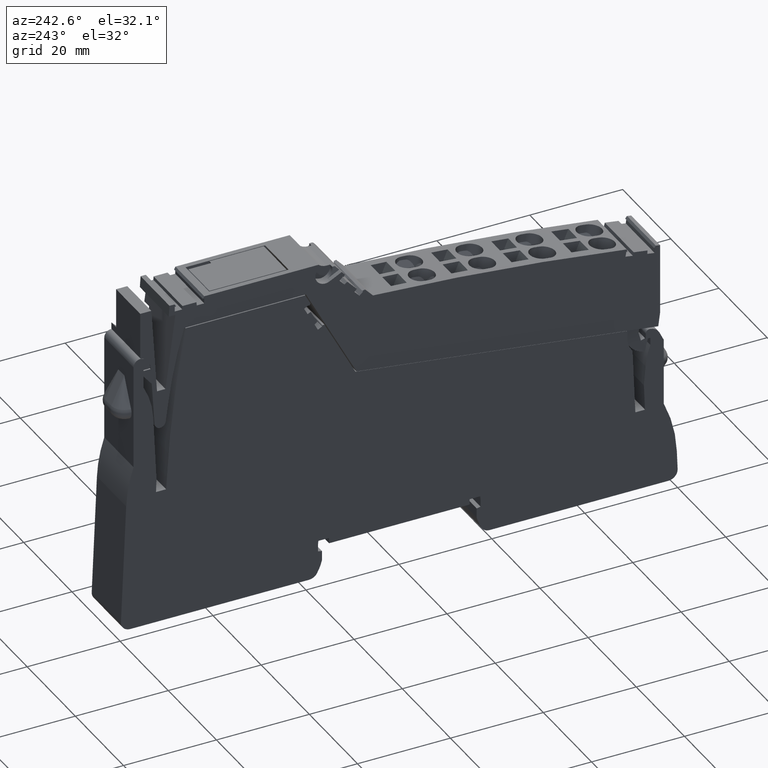
[diagram: clean part render]
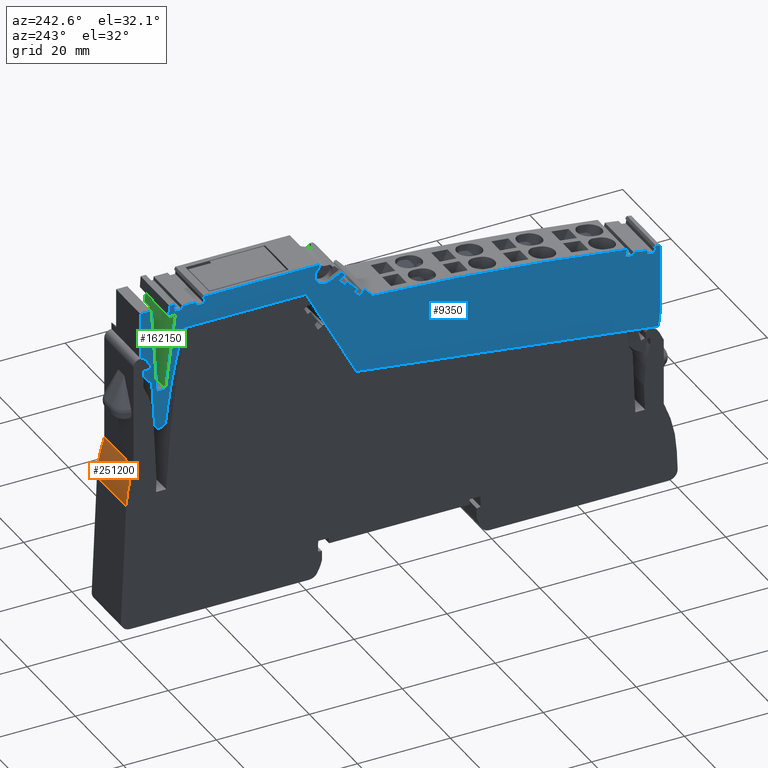
[diagram: same view with three faces highlighted in distinct colors, each labeled with its STEP entity id]
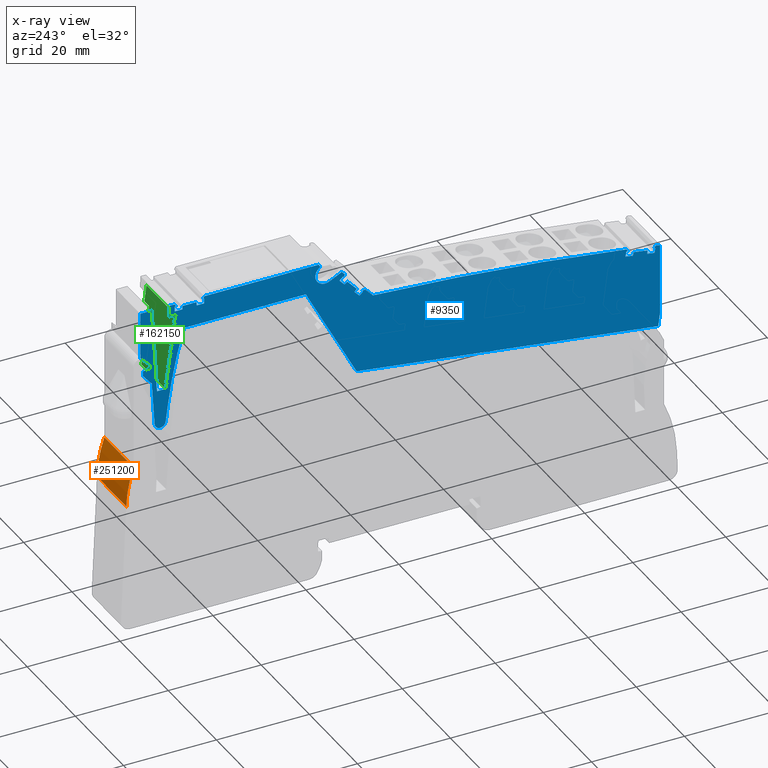
[diagram: x-ray of the same camera — body ghosted, the three highlighted faces saturated]
A machine part, auxiliary view with three faces highlighted in distinct colors.
The next image is the same camera in x-ray (body ghosted, the three faces saturated) — at least one of them is partly hidden behind the body in this view.
Their STEP definitions:

[orange] entity #251200 — the highlighted cylindrical surface (partial cylindrical patch) has radius 30 mm, axis along (1, 0, 0).
#176060=CARTESIAN_POINT('',(293.728620208859,-26.6633289582232,36.45));
#176070=VERTEX_POINT('',#176060);
#176100=CARTESIAN_POINT('',(265.338905386229,-36.3599310584282,36.45));
#176110=DIRECTION('',(0.,1.19110369467609E-44,1.));
#176120=DIRECTION('',(1.,0.,0.));
#176130=AXIS2_PLACEMENT_3D('',#176100,#176110,#176120);
#176140=CIRCLE('',#176130,29.9999999999995);
#176150=CARTESIAN_POINT('',(295.310352033684,-35.0513494374681,36.45));
#176160=VERTEX_POINT('',#176150);
#176170=EDGE_CURVE('',#176160,#176070,#176140,.T.);
#179710=CARTESIAN_POINT('',(295.310352033684,-35.0513494374681,24.3));
#179720=VERTEX_POINT('',#179710);
#179750=CARTESIAN_POINT('',(265.338905386229,-36.3599310584282,24.3));
#179760=DIRECTION('',(0.,1.19110369467609E-44,1.));
#179770=DIRECTION('',(1.,0.,0.));
#179780=AXIS2_PLACEMENT_3D('',#179750,#179760,#179770);
#179790=CIRCLE('',#179780,29.9999999999995);
#179800=CARTESIAN_POINT('',(293.728620208859,-26.6633289582232,24.3));
#179810=VERTEX_POINT('',#179800);
#179820=EDGE_CURVE('',#179720,#179810,#179790,.T.);
#185440=CARTESIAN_POINT('',(295.310352033684,-35.0513494374681,24.3));
#185450=DIRECTION('',(0.,1.19110369467609E-44,1.));
#185460=VECTOR('',#185450,1.);
#185470=LINE('',#185440,#185460);
#185480=EDGE_CURVE('',#179720,#176160,#185470,.T.);
#251040=CARTESIAN_POINT('',(265.338905386229,-36.3599310584282,24.3));
#251050=DIRECTION('',(0.,1.19110369467609E-44,1.));
#251060=DIRECTION('',(1.,0.,0.));
#251070=AXIS2_PLACEMENT_3D('',#251040,#251050,#251060);
#251080=CYLINDRICAL_SURFACE('',#251070,29.9999999999995);
#251090=CARTESIAN_POINT('',(293.728620208859,-26.6633289582232,24.3));
#251100=DIRECTION('',(0.,1.19110369467609E-44,1.));
#251110=VECTOR('',#251100,1.);
#251120=LINE('',#251090,#251110);
#251130=EDGE_CURVE('',#179810,#176070,#251120,.T.);
#251140=ORIENTED_EDGE('',*,*,#251130,.T.);
#251150=ORIENTED_EDGE('',*,*,#179820,.T.);
#251160=ORIENTED_EDGE('',*,*,#185480,.F.);
#251170=ORIENTED_EDGE('',*,*,#176170,.F.);
#251180=EDGE_LOOP('',(#251170,#251160,#251150,#251140));
#251190=FACE_OUTER_BOUND('',#251180,.T.);
#251200=ADVANCED_FACE('',(#251190),#251080,.T.);

[blue] entity #9350 — the highlighted planar face has unit normal (1, 0, 0).
#4190=CARTESIAN_POINT('',(82.6815349965882,79.1094320933787,-47.425));
#4200=DIRECTION('',(0.,-0.,1.));
#4210=DIRECTION('',(0.99144486137381,0.130526192220052,0.));
#4220=AXIS2_PLACEMENT_3D('',#4190,#4200,#4210);
#4230=PLANE('',#4220);
#4240=CARTESIAN_POINT('',(5.79123762688281,-2.8421709430404E-14,-47.425)
);
#4250=DIRECTION('',(-0.681998360062363,-0.731353701619297,0.));
#4260=VECTOR('',#4250,1.);
#4270=LINE('',#4240,#4260);
#4280=CARTESIAN_POINT('',(81.7124060542132,81.4154854500132,-47.425));
#4290=VERTEX_POINT('',#4280);
#4300=CARTESIAN_POINT('',(81.0478254756385,80.7028100322594,-47.425));
#4310=VERTEX_POINT('',#4300);
#4320=EDGE_CURVE('',#4290,#4310,#4270,.T.);
#4330=ORIENTED_EDGE('',*,*,#4320,.F.);
#4340=CARTESIAN_POINT('',(84.4997434735127,69.4120950101041,-47.425));
#4350=DIRECTION('',(-0.29237170472236,0.956304755963151,
5.82816236513809E-18));
#4360=VECTOR('',#4350,1.);
#4370=LINE('',#4340,#4360);
#4380=CARTESIAN_POINT('',(81.2267544110084,80.1175598554815,-47.425));
#4390=VERTEX_POINT('',#4380);
#4400=EDGE_CURVE('',#4390,#4310,#4370,.T.);
#4410=ORIENTED_EDGE('',*,*,#4400,.T.);
#4420=CARTESIAN_POINT('',(72.2846363775451,70.5283122750928,-47.425));
#4430=DIRECTION('',(-0.681998360064199,-0.731353701617584,
-2.53969612853764E-19));
#4440=VECTOR('',#4430,1.);
#4450=LINE('',#4420,#4440);
#4460=CARTESIAN_POINT('',(81.4124677620555,80.3167130421773,-47.425));
#4470=VERTEX_POINT('',#4460);
#4480=EDGE_CURVE('',#4470,#4390,#4450,.T.);
#4490=ORIENTED_EDGE('',*,*,#4480,.T.);
#4500=CARTESIAN_POINT('',(92.0414943958454,70.4049853552113,-47.425));
#4510=DIRECTION('',(-0.731353701619242,0.681998360062422,
-6.29825467579363E-18));
#4520=VECTOR('',#4510,1.);
#4530=LINE('',#4500,#4520);
#4540=CARTESIAN_POINT('',(82.195016222788,79.5869747969106,-47.425));
#4550=VERTEX_POINT('',#4540);
#4560=EDGE_CURVE('',#4550,#4470,#4530,.T.);
#4570=ORIENTED_EDGE('',*,*,#4560,.T.);
#4580=CARTESIAN_POINT('',(72.4656350505869,69.1534908599375,-47.425));
#4590=DIRECTION('',(0.681998360062451,0.731353701619215,
2.5396961263959E-19));
#4600=VECTOR('',#4590,1.);
#4610=LINE('',#4580,#4600);
#4620=CARTESIAN_POINT('',(81.1059442929708,78.4190881364081,-47.425));
#4630=VERTEX_POINT('',#4620);
#4640=EDGE_CURVE('',#4630,#4550,#4610,.T.);
#4650=ORIENTED_EDGE('',*,*,#4640,.T.);
#4660=CARTESIAN_POINT('',(91.4612958937313,70.3286007733115,-47.425));
#4670=DIRECTION('',(0.788010753606755,-0.615661475325616,
4.09923168310491E-17));
#4680=VECTOR('',#4670,1.);
#4690=LINE('',#4660,#4680);
#4700=CARTESIAN_POINT('',(80.5126786729696,78.8825980380156,-47.425));
#4710=VERTEX_POINT('',#4700);
#4720=EDGE_CURVE('',#4710,#4630,#4690,.T.);
#4730=ORIENTED_EDGE('',*,*,#4720,.T.);
#4740=CARTESIAN_POINT('',(72.338766821823,70.1171507303451,-47.425));
#4750=DIRECTION('',(0.681998360062455,0.731353701619211,
2.53969612640089E-19));
#4760=VECTOR('',#4750,1.);
#4770=LINE('',#4740,#4760);
#4780=CARTESIAN_POINT('',(78.4666835927826,76.6885369331584,-47.425));
#4790=VERTEX_POINT('',#4780);
#4800=EDGE_CURVE('',#4790,#4710,#4770,.T.);
#4810=ORIENTED_EDGE('',*,*,#4800,.T.);
#4820=CARTESIAN_POINT('',(84.9634529968731,69.4731435270096,-47.425));
#4830=DIRECTION('',(-0.669130606358558,0.743144825477665,
1.32187545408513E-18));
#4840=VECTOR('',#4830,1.);
#4850=LINE('',#4820,#4840);
#4860=CARTESIAN_POINT('',(78.9704485252099,76.1290492946714,-47.425));
#4870=VERTEX_POINT('',#4860);
#4880=EDGE_CURVE('',#4870,#4790,#4850,.T.);
#4890=ORIENTED_EDGE('',*,*,#4880,.T.);
#4900=CARTESIAN_POINT('',(72.4656350505866,69.15349085994,-47.425));
#4910=DIRECTION('',(0.681998360062575,0.7313537016191,
2.53969612654784E-19));
#4920=VECTOR('',#4910,1.);
#4930=LINE('',#4900,#4920);
#4940=CARTESIAN_POINT('',(77.8813765953927,74.9611626341693,-47.425));
#4950=VERTEX_POINT('',#4940);
#4960=EDGE_CURVE('',#4950,#4870,#4930,.T.);
#4970=ORIENTED_EDGE('',*,*,#4960,.T.);
#4980=CARTESIAN_POINT('',(83.9146294887447,69.3350632926361,-47.425));
#4990=DIRECTION('',(0.731353701619242,-0.681998360062422,
6.29825467579363E-18));
#5000=VECTOR('',#4990,1.);
#5010=LINE('',#4980,#5000);
#5020=CARTESIAN_POINT('',(77.0988281346601,75.6909008794362,-47.425));
#5030=VERTEX_POINT('',#5020);
#5040=EDGE_CURVE('',#5030,#4950,#5010,.T.);
#5050=ORIENTED_EDGE('',*,*,#5040,.T.);
#5060=CARTESIAN_POINT('',(72.2846363775469,70.5283122750789,-47.425));
#5070=DIRECTION('',(-0.681998360064581,-0.731353701617229,
-2.53969612900505E-19));
#5080=VECTOR('',#5070,1.);
#5090=LINE('',#5060,#5080);
#5100=CARTESIAN_POINT('',(77.2845414857078,75.8900540661325,-47.425));
#5110=VERTEX_POINT('',#5100);
#5120=EDGE_CURVE('',#5110,#5030,#5090,.T.);
#5130=ORIENTED_EDGE('',*,*,#5120,.T.);
#5140=CARTESIAN_POINT('',(71.3998893619735,77.248633057342,-47.425));
#5150=DIRECTION('',(0.974370064785244,-0.224951054343824,
3.6059170670998E-17));
#5160=VECTOR('',#5150,1.);
#5170=LINE('',#5140,#5160);
#5180=CARTESIAN_POINT('',(76.688235497364,76.0277221510188,-47.425));
#5190=VERTEX_POINT('',#5180);
#5200=EDGE_CURVE('',#5190,#5110,#5170,.T.);
#5210=ORIENTED_EDGE('',*,*,#5200,.T.);
#5220=CARTESIAN_POINT('',(72.1949828292245,71.2092985834693,-47.425));
#5230=DIRECTION('',(-0.681998360062363,-0.731353701619297,
-2.53969612628868E-19));
#5240=VECTOR('',#5230,1.);
#5250=LINE('',#5220,#5240);
#5260=CARTESIAN_POINT('',(74.9791020504745,74.1949009213182,-47.425));
#5270=VERTEX_POINT('',#5260);
#5280=EDGE_CURVE('',#5190,#5270,#5250,.T.);
#5290=ORIENTED_EDGE('',*,*,#5280,.F.);
#5300=CARTESIAN_POINT('',(104.084452057128,-500.06799932646,-47.425));
#5310=DIRECTION('',(-8.85927774418128E-33,0.,1.));
#5320=DIRECTION('',(0.99144486137381,0.130526192220052,0.));
#5330=AXIS2_PLACEMENT_3D('',#5300,#5310,#5320);
#5340=CIRCLE('',#5330,575.);
#5350=CARTESIAN_POINT('',(20.4055873620426,68.8105884260945,-47.425));
#5360=VERTEX_POINT('',#5350);
#5370=EDGE_CURVE('',#5270,#5360,#5340,.T.);
#5380=ORIENTED_EDGE('',*,*,#5370,.F.);
#5390=CARTESIAN_POINT('',(17.182413559422,60.5496003959994,-47.425));
#5400=DIRECTION('',(0.363481180558057,0.931601541100122,
-1.0997552478088E-17));
#5410=VECTOR('',#5400,1.);
#5420=LINE('',#5390,#5410);
#5430=CARTESIAN_POINT('',(20.186856520418,68.2499817150929,-47.425));
#5440=VERTEX_POINT('',#5430);
#5450=EDGE_CURVE('',#5440,#5360,#5420,.T.);
#5460=ORIENTED_EDGE('',*,*,#5450,.T.);
#5470=CARTESIAN_POINT('',(71.5515172321112,76.0969050391398,-47.425));
#5480=DIRECTION('',(-0.988531191077486,-0.151016834382553,
3.70508301048238E-19));
#5490=VECTOR('',#5480,1.);
#5500=LINE('',#5470,#5490);
#5510=CARTESIAN_POINT('',(20.4560410974773,68.2911047500148,-47.425));
#5520=VERTEX_POINT('',#5510);
#5530=EDGE_CURVE('',#5520,#5440,#5500,.T.);
#5540=ORIENTED_EDGE('',*,*,#5530,.T.);
#5550=CARTESIAN_POINT('',(21.5508426617955,61.1247149978603,-47.425));
#5560=DIRECTION('',(-0.15101683438897,0.988531191076505,
2.32245661692122E-18));
#5570=VECTOR('',#5560,1.);
#5580=LINE('',#5550,#5570);
#5590=CARTESIAN_POINT('',(20.6176291102735,67.2333763755631,-47.425));
#5600=VERTEX_POINT('',#5590);
#5610=EDGE_CURVE('',#5600,#5520,#5580,.T.);
#5620=ORIENTED_EDGE('',*,*,#5610,.T.);
#5630=CARTESIAN_POINT('',(71.6912101768906,75.0358317793135,-47.425));
#5640=DIRECTION('',(0.9885311910765,0.151016834389004,
-3.70508301168919E-19));
#5650=VECTOR('',#5640,1.);
#5660=LINE('',#5630,#5650);
#5670=CARTESIAN_POINT('',(19.0390599596794,66.9922200841493,-47.425));
#5680=VERTEX_POINT('',#5670);
#5690=EDGE_CURVE('',#5680,#5600,#5660,.T.);
#5700=ORIENTED_EDGE('',*,*,#5690,.T.);
#5710=CARTESIAN_POINT('',(20.5015098805976,60.9865677164153,-47.425));
#5720=DIRECTION('',(0.236598339928087,-0.971607547080236,
8.15825325755319E-18));
#5730=VECTOR('',#5720,1.);
#5740=LINE('',#5710,#5730);
#5750=CARTESIAN_POINT('',(18.8609333793172,67.7237092816986,-47.425));
#5760=VERTEX_POINT('',#5750);
#5770=EDGE_CURVE('',#5760,#5680,#5740,.T.);
#5780=ORIENTED_EDGE('',*,*,#5770,.T.);
#5790=CARTESIAN_POINT('',(71.5932945613605,75.7795747186763,-47.425));
#5800=DIRECTION('',(0.988531191076507,0.151016834388962,
-3.70508301168148E-19));
#5810=VECTOR('',#5800,1.);
#5820=LINE('',#5790,#5810);
#5830=CARTESIAN_POINT('',(15.8953398060877,67.2706587785318,-47.425));
#5840=VERTEX_POINT('',#5830);
#5850=EDGE_CURVE('',#5840,#5760,#5820,.T.);
#5860=ORIENTED_EDGE('',*,*,#5850,.T.);
#5870=CARTESIAN_POINT('',(16.3354880816018,60.438100541574,-47.425));
#5880=DIRECTION('',(-0.0642859995531953,0.997931515817316,
-9.33869096267743E-19));
#5890=VECTOR('',#5880,1.);
#5900=LINE('',#5870,#5890);
#5910=CARTESIAN_POINT('',(15.9437384773084,66.5193511894665,-47.425));
#5920=VERTEX_POINT('',#5910);
#5930=EDGE_CURVE('',#5920,#5840,#5900,.T.);
#5940=ORIENTED_EDGE('',*,*,#5930,.T.);
#5950=CARTESIAN_POINT('',(71.6912101768911,75.0358317793091,-47.425));
#5960=DIRECTION('',(0.988531191076512,0.151016834388925,
-3.70508301167481E-19));
#5970=VECTOR('',#5960,1.);
#5980=LINE('',#5950,#5970);
#5990=CARTESIAN_POINT('',(14.3651693267146,66.2781948980529,-47.425));
#6000=VERTEX_POINT('',#5990);
#6010=EDGE_CURVE('',#6000,#5920,#5980,.T.);
#6020=ORIENTED_EDGE('',*,*,#6010,.T.);
#6030=CARTESIAN_POINT('',(15.2786105398164,60.2989599735539,-47.425));
#6040=DIRECTION('',(0.151016834388983,-0.988531191076503,
-2.32245661691962E-18));
#6050=VECTOR('',#6040,1.);
#6060=LINE('',#6030,#6050);
#6070=CARTESIAN_POINT('',(14.2035813139184,67.335923272505,-47.425));
#6080=VERTEX_POINT('',#6070);
#6090=EDGE_CURVE('',#6080,#6000,#6060,.T.);
#6100=ORIENTED_EDGE('',*,*,#6090,.T.);
#6110=CARTESIAN_POINT('',(71.551517232091,76.0969050392932,-47.425));
#6120=DIRECTION('',(-0.988531191076977,-0.151016834385886,
3.70508301110601E-19));
#6130=VECTOR('',#6120,1.);
#6140=LINE('',#6110,#6130);
#6150=CARTESIAN_POINT('',(14.472765890979,67.3770463074278,-47.425));
#6160=VERTEX_POINT('',#6150);
#6170=EDGE_CURVE('',#6160,#6080,#6140,.T.);
#6180=ORIENTED_EDGE('',*,*,#6170,.T.);
#6190=CARTESIAN_POINT('',(19.676851164994,60.8779993368489,-47.425));
#6200=DIRECTION('',(0.625050010517978,-0.780584706711242,
2.1035385032723E-17));
#6210=VECTOR('',#6200,1.);
#6220=LINE('',#6190,#6210);
#6230=CARTESIAN_POINT('',(14.0966316585303,67.8467761283693,-47.425));
#6240=VERTEX_POINT('',#6230);
#6250=EDGE_CURVE('',#6240,#6160,#6220,.T.);
#6260=ORIENTED_EDGE('',*,*,#6250,.T.);
#6270=CARTESIAN_POINT('',(104.084452057128,-500.06799932646,-47.425));
#6280=DIRECTION('',(-8.85927774418128E-33,0.,1.));
#6290=DIRECTION('',(0.99144486137381,0.130526192220052,0.));
#6300=AXIS2_PLACEMENT_3D('',#6270,#6280,#6290);
#6310=CIRCLE('',#6300,575.);
#6320=CARTESIAN_POINT('',(13.1829347668366,67.701244428714,-47.425));
#6330=VERTEX_POINT('',#6320);
#6340=EDGE_CURVE('',#6240,#6330,#6310,.T.);
#6350=ORIENTED_EDGE('',*,*,#6340,.F.);
#6360=CARTESIAN_POINT('',(13.1829347668366,60.0230590239077,-47.425));
#6370=DIRECTION('',(8.32667268468867E-17,-1.,-1.38777878078145E-17));
#6380=VECTOR('',#6370,1.);
#6390=LINE('',#6360,#6380);
#6400=CARTESIAN_POINT('',(13.1829347668366,52.4942181245001,-47.425));
#6410=VERTEX_POINT('',#6400);
#6420=EDGE_CURVE('',#6330,#6410,#6390,.T.);
#6430=ORIENTED_EDGE('',*,*,#6420,.F.);
#6440=CARTESIAN_POINT('',(12.2086310606799,59.8947895075835,-47.425));
#6450=DIRECTION('',(0.130526192220052,-0.99144486137381,
-3.08148791101958E-32));
#6460=VECTOR('',#6450,1.);
#6470=LINE('',#6440,#6460);
#6480=CARTESIAN_POINT('',(13.5745133434982,49.5198835403683,-47.425));
#6490=VERTEX_POINT('',#6480);
#6500=EDGE_CURVE('',#6410,#6490,#6470,.T.);
#6510=ORIENTED_EDGE('',*,*,#6500,.F.);
#6520=CARTESIAN_POINT('',(74.0030776442306,57.4754549561902,-47.425));
#6530=DIRECTION('',(0.991444861373789,0.130526192220212,
1.98588366815474E-32));
#6540=VECTOR('',#6530,1.);
#6550=LINE('',#6520,#6540);
#6560=CARTESIAN_POINT('',(78.5141517634814,58.0693491307923,-47.425));
#6570=VERTEX_POINT('',#6560);
#6580=EDGE_CURVE('',#6490,#6570,#6550,.T.);
#6590=ORIENTED_EDGE('',*,*,#6580,.F.);
#6600=CARTESIAN_POINT('',(84.5486179871549,69.4185294618935,-47.425));
#6610=DIRECTION('',(0.469471562785891,0.882947592858927,
1.98252351633153E-18));
#6620=VECTOR('',#6610,1.);
#6630=LINE('',#6600,#6620);
#6640=CARTESIAN_POINT('',(89.4233780495347,78.5866197234246,-47.425));
#6650=VERTEX_POINT('',#6640);
#6660=EDGE_CURVE('',#6570,#6650,#6630,.T.);
#6670=ORIENTED_EDGE('',*,*,#6660,.F.);
#6680=CARTESIAN_POINT('',(71.2237400756451,78.5866197234246,-47.425));
#6690=DIRECTION('',(1.,5.55111512312578E-17,1.14423563262215E-17));
#6700=VECTOR('',#6690,1.);
#6710=LINE('',#6680,#6700);
#6720=CARTESIAN_POINT('',(115.64625629166,78.5866197234246,-47.425));
#6730=VERTEX_POINT('',#6720);
#6740=EDGE_CURVE('',#6650,#6730,#6710,.T.);
#6750=ORIENTED_EDGE('',*,*,#6740,.F.);
#6760=CARTESIAN_POINT('',(15.2913513139149,48.7372805865571,-47.425));
#6770=DIRECTION('',(-8.85927774418128E-33,0.,1.));
#6780=DIRECTION('',(0.99144486137381,0.130526192220052,0.));
#6790=AXIS2_PLACEMENT_3D('',#6760,#6770,#6780);
#6800=CIRCLE('',#6790,104.7);
#6810=CARTESIAN_POINT('',(119.095628299753,62.4033729119965,-47.425));
#6820=VERTEX_POINT('',#6810);
#6830=EDGE_CURVE('',#6820,#6730,#6800,.T.);
#6840=ORIENTED_EDGE('',*,*,#6830,.T.);
#6850=CARTESIAN_POINT('',(117.599219824716,73.769723740575,-47.425));
#6860=DIRECTION('',(-0.130526192220052,0.99144486137381,0.));
#6870=VECTOR('',#6860,1.);
#6880=LINE('',#6850,#6870);
#6890=CARTESIAN_POINT('',(119.598580203269,58.5830739223591,-47.425));
#6900=VERTEX_POINT('',#6890);
#6910=EDGE_CURVE('',#6900,#6820,#6880,.T.);
#6920=ORIENTED_EDGE('',*,*,#6910,.T.);
#6930=CARTESIAN_POINT('',(120.788314036918,58.7397053530232,-47.425));
#6940=DIRECTION('',(-1.96444854327498E-32,8.0118685686509E-32,1.));
#6950=DIRECTION('',(0.99144486137381,0.130526192220052,0.));
#6960=AXIS2_PLACEMENT_3D('',#6930,#6940,#6950);
#6970=CIRCLE('',#6960,1.2);
#6980=CARTESIAN_POINT('',(121.985744744804,58.6612215979472,-47.425));
#6990=VERTEX_POINT('',#6980);
#7000=EDGE_CURVE('',#6900,#6990,#6970,.T.);
#7010=ORIENTED_EDGE('',*,*,#7000,.F.);
#7020=CARTESIAN_POINT('',(123.022808223681,74.4837526991847,-47.425));
#7030=DIRECTION('',(0.0654031292301337,0.997858923238604,
2.18873597126985E-17));
#7040=VECTOR('',#7030,1.);
#7050=LINE('',#7020,#7040);
#7060=CARTESIAN_POINT('',(122.597772882635,67.9989665315018,-47.425));
#7070=VERTEX_POINT('',#7060);
#7080=EDGE_CURVE('',#6990,#7070,#7050,.T.);
#7090=ORIENTED_EDGE('',*,*,#7080,.F.);
#7100=CARTESIAN_POINT('',(65.5398651456152,-2.8421709430404E-14,-47.425)
);
#7110=DIRECTION('',(-0.642787609686539,-0.766044443118978,0.));
#7120=VECTOR('',#7110,1.);
#7130=LINE('',#7100,#7120);
#7140=CARTESIAN_POINT('',(124.476285095723,70.2376902101819,-47.425));
#7150=VERTEX_POINT('',#7140);
#7160=EDGE_CURVE('',#7150,#7070,#7130,.T.);
#7170=ORIENTED_EDGE('',*,*,#7160,.T.);
#7180=CARTESIAN_POINT('',(124.476285095723,-2.8421709430404E-14,-47.425)
);
#7190=DIRECTION('',(0.,-1.,0.));
#7200=VECTOR('',#7190,1.);
#7210=LINE('',#7180,#7200);
#7220=CARTESIAN_POINT('',(124.476285095723,71.3866197234247,-47.425));
#7230=VERTEX_POINT('',#7220);
#7240=EDGE_CURVE('',#7230,#7150,#7210,.T.);
#7250=ORIENTED_EDGE('',*,*,#7240,.T.);
#7260=CARTESIAN_POINT('',(72.1716380582743,71.3866197234251,-47.425));
#7270=DIRECTION('',(-1.,5.99520433297585E-15,1.27111376329558E-32));
#7280=VECTOR('',#7270,1.);
#7290=LINE('',#7260,#7280);
#7300=CARTESIAN_POINT('',(122.81981140365,71.3866197234248,-47.425));
#7310=VERTEX_POINT('',#7300);
#7320=EDGE_CURVE('',#7230,#7310,#7290,.T.);
#7330=ORIENTED_EDGE('',*,*,#7320,.F.);
#7340=CARTESIAN_POINT('',(123.022808223681,74.4837526991847,-47.425));
#7350=DIRECTION('',(-0.0654031292301295,-0.997858923238604,
-2.18873597126979E-17));
#7360=VECTOR('',#7350,1.);
#7370=LINE('',#7340,#7360);
#7380=CARTESIAN_POINT('',(122.87897695389,72.2893115815919,-47.425));
#7390=VERTEX_POINT('',#7380);
#7400=EDGE_CURVE('',#7390,#7310,#7370,.T.);
#7410=ORIENTED_EDGE('',*,*,#7400,.T.);
#7420=CARTESIAN_POINT('',(77.9657366776979,27.3760713054033,-47.425));
#7430=DIRECTION('',(0.707106781186573,0.707106781186522,
-2.44267117772998E-17));
#7440=VECTOR('',#7430,1.);
#7450=LINE('',#7420,#7440);
#7460=CARTESIAN_POINT('',(125.076285095723,74.4866197234248,-47.425));
#7470=VERTEX_POINT('',#7460);
#7480=EDGE_CURVE('',#7390,#7470,#7450,.T.);
#7490=ORIENTED_EDGE('',*,*,#7480,.F.);
#7500=CARTESIAN_POINT('',(125.076285095723,74.754098058127,-47.425));
#7510=DIRECTION('',(2.80331313717852E-15,1.,1.38777878078148E-17));
#7520=VECTOR('',#7510,1.);
#7530=LINE('',#7500,#7520);
#7540=CARTESIAN_POINT('',(125.076285095723,84.4866197234247,-47.425));
#7550=VERTEX_POINT('',#7540);
#7560=EDGE_CURVE('',#7470,#7550,#7530,.T.);
#7570=ORIENTED_EDGE('',*,*,#7560,.F.);
#7580=CARTESIAN_POINT('',(70.4469903398795,84.4866197234242,-47.425));
#7590=DIRECTION('',(-1.,-9.10382880192628E-15,-1.14423563262215E-17));
#7600=VECTOR('',#7590,1.);
#7610=LINE('',#7580,#7600);
#7620=CARTESIAN_POINT('',(122.676285095722,84.4866197234247,-47.425));
#7630=VERTEX_POINT('',#7620);
#7640=EDGE_CURVE('',#7550,#7630,#7610,.T.);
#7650=ORIENTED_EDGE('',*,*,#7640,.F.);
#7660=CARTESIAN_POINT('',(117.138739477497,-2.8421709430404E-14,-47.425)
);
#7670=DIRECTION('',(0.0654031292301221,0.997858923238605,0.));
#7680=VECTOR('',#7670,1.);
#7690=LINE('',#7660,#7680);
#7700=CARTESIAN_POINT('',(121.463731033641,65.9866197234248,-47.425));
#7710=VERTEX_POINT('',#7700);
#7720=EDGE_CURVE('',#7710,#7630,#7690,.T.);
#7730=ORIENTED_EDGE('',*,*,#7720,.T.);
#7740=CARTESIAN_POINT('',(7.105427357601E-15,65.9866197234254,-47.425));
#7750=DIRECTION('',(1.,-5.30131494258512E-15,0.));
#7760=VECTOR('',#7750,1.);
#7770=LINE('',#7740,#7760);
#7780=CARTESIAN_POINT('',(119.632513868136,65.9866197234248,-47.425));
#7790=VERTEX_POINT('',#7780);
#7800=EDGE_CURVE('',#7790,#7710,#7770,.T.);
#7810=ORIENTED_EDGE('',*,*,#7800,.T.);
#7820=CARTESIAN_POINT('',(128.319817162075,-2.8421709430404E-14,-47.425)
);
#7830=DIRECTION('',(0.130526192220052,-0.99144486137381,0.));
#7840=VECTOR('',#7830,1.);
#7850=LINE('',#7820,#7840);
#7860=CARTESIAN_POINT('',(117.512908656979,82.0866197234256,-47.425));
#7870=VERTEX_POINT('',#7860);
#7880=EDGE_CURVE('',#7870,#7790,#7850,.T.);
#7890=ORIENTED_EDGE('',*,*,#7880,.T.);
#7900=CARTESIAN_POINT('',(70.7629563340898,82.0866197234204,-47.425));
#7910=DIRECTION('',(-1.,-1.11688436277291E-13,-1.14423563262215E-17));
#7920=VECTOR('',#7910,1.);
#7930=LINE('',#7900,#7920);
#7940=CARTESIAN_POINT('',(118.933589406479,82.0866197234257,-47.425));
#7950=VERTEX_POINT('',#7940);
#7960=EDGE_CURVE('',#7950,#7870,#7930,.T.);
#7970=ORIENTED_EDGE('',*,*,#7960,.T.);
#7980=CARTESIAN_POINT('',(119.46262829087,74.0150461191697,-47.425));
#7990=DIRECTION('',(-0.0654031292301207,0.997858923238605,
-1.07067800097519E-18));
#8000=VECTOR('',#7990,1.);
#8010=LINE('',#7980,#8000);
#8020=CARTESIAN_POINT('',(118.776285095723,84.4866197234246,-47.425));
#8030=VERTEX_POINT('',#8020);
#8040=EDGE_CURVE('',#7950,#8030,#8010,.T.);
#8050=ORIENTED_EDGE('',*,*,#8040,.F.);
#8060=CARTESIAN_POINT('',(70.4469903398795,84.4866197234245,-47.425));
#8070=DIRECTION('',(-1.,-3.33066907387547E-15,-1.14423563262215E-17));
#8080=VECTOR('',#8070,1.);
#8090=LINE('',#8060,#8080);
#8100=CARTESIAN_POINT('',(117.672473117258,84.4866197234246,-47.425));
#8110=VERTEX_POINT('',#8100);
#8120=EDGE_CURVE('',#8030,#8110,#8090,.T.);
#8130=ORIENTED_EDGE('',*,*,#8120,.F.);
#8140=CARTESIAN_POINT('',(110.982106139763,72.8985641971313,-47.425));
#8150=DIRECTION('',(0.500000000000253,0.866025403784292,
-2.20343974524871E-17));
#8160=VECTOR('',#8150,1.);
#8170=LINE('',#8140,#8160);
#8180=CARTESIAN_POINT('',(117.366477474588,83.9566197234262,-47.425));
#8190=VERTEX_POINT('',#8180);
#8200=EDGE_CURVE('',#8190,#8110,#8170,.T.);
#8210=ORIENTED_EDGE('',*,*,#8200,.T.);
#8220=CARTESIAN_POINT('',(70.5167661635693,83.9566197236635,-47.425));
#8230=DIRECTION('',(-1.,5.06689135093552E-12,-1.14423563262215E-17));
#8240=VECTOR('',#8230,1.);
#8250=LINE('',#8220,#8240);
#8260=CARTESIAN_POINT('',(117.638785095723,83.9566197234248,-47.425));
#8270=VERTEX_POINT('',#8260);
#8280=EDGE_CURVE('',#8270,#8190,#8250,.T.);
#8290=ORIENTED_EDGE('',*,*,#8280,.T.);
#8300=CARTESIAN_POINT('',(117.638785095723,73.7749326073208,-47.425));
#8310=DIRECTION('',(-5.49282841433296E-14,1.,1.38777878078077E-17));
#8320=VECTOR('',#8310,1.);
#8330=LINE('',#8300,#8320);
#8340=CARTESIAN_POINT('',(117.638785095723,82.8866197234249,-47.425));
#8350=VERTEX_POINT('',#8340);
#8360=EDGE_CURVE('',#8350,#8270,#8330,.T.);
#8370=ORIENTED_EDGE('',*,*,#8360,.T.);
#8380=CARTESIAN_POINT('',(70.6576343360198,82.8866197234211,-47.425));
#8390=DIRECTION('',(1.,8.06021915877864E-14,1.14423563262215E-17));
#8400=VECTOR('',#8390,1.);
#8410=LINE('',#8380,#8400);
#8420=CARTESIAN_POINT('',(116.041901593367,82.8866197234247,-47.425));
#8430=VERTEX_POINT('',#8420);
#8440=EDGE_CURVE('',#8430,#8350,#8410,.T.);
#8450=ORIENTED_EDGE('',*,*,#8440,.T.);
#8460=CARTESIAN_POINT('',(116.848177222998,73.6708471062643,-47.425));
#8470=DIRECTION('',(0.0871557427473462,-0.996194698091773,
3.73460439312547E-18));
#8480=VECTOR('',#8470,1.);
#8490=LINE('',#8460,#8480);
#8500=CARTESIAN_POINT('',(115.976285095723,83.6366197234249,-47.425));
#8510=VERTEX_POINT('',#8500);
#8520=EDGE_CURVE('',#8510,#8430,#8490,.T.);
#8530=ORIENTED_EDGE('',*,*,#8520,.T.);
#8540=CARTESIAN_POINT('',(70.5588949628286,83.6366197234257,-47.425));
#8550=DIRECTION('',(1.,-1.86795023893183E-14,1.14423563262215E-17));
#8560=VECTOR('',#8550,1.);
#8570=LINE('',#8540,#8560);
#8580=CARTESIAN_POINT('',(112.976285095723,83.6366197234249,-47.425));
#8590=VERTEX_POINT('',#8580);
#8600=EDGE_CURVE('',#8590,#8510,#8570,.T.);
#8610=ORIENTED_EDGE('',*,*,#8600,.T.);
#8620=CARTESIAN_POINT('',(112.049116906709,73.0390388295523,-47.425));
#8630=DIRECTION('',(0.087155742747754,0.996194698091737,
1.06734982970826E-17));
#8640=VECTOR('',#8630,1.);
#8650=LINE('',#8620,#8640);
#8660=CARTESIAN_POINT('',(112.910668598078,82.886619723425,-47.425));
#8670=VERTEX_POINT('',#8660);
#8680=EDGE_CURVE('',#8670,#8590,#8650,.T.);
#8690=ORIENTED_EDGE('',*,*,#8680,.T.);
#8700=CARTESIAN_POINT('',(70.6576343360199,82.8866197234199,-47.425));
#8710=DIRECTION('',(1.,1.19126930542279E-13,1.14423563262215E-17));
#8720=VECTOR('',#8710,1.);
#8730=LINE('',#8700,#8720);
#8740=CARTESIAN_POINT('',(111.313785095723,82.8866197234248,-47.425));
#8750=VERTEX_POINT('',#8740);
#8760=EDGE_CURVE('',#8750,#8670,#8730,.T.);
#8770=ORIENTED_EDGE('',*,*,#8760,.T.);
#8780=CARTESIAN_POINT('',(111.313785095722,72.9422305600803,-47.425));
#8790=DIRECTION('',(-9.34252675222069E-14,-1.,-1.38777878078259E-17));
#8800=VECTOR('',#8790,1.);
#8810=LINE('',#8780,#8800);
#8820=CARTESIAN_POINT('',(111.313785095723,83.9566197234249,-47.425));
#8830=VERTEX_POINT('',#8820);
#8840=EDGE_CURVE('',#8830,#8750,#8810,.T.);
#8850=ORIENTED_EDGE('',*,*,#8840,.T.);
#8860=CARTESIAN_POINT('',(70.5167661636283,83.9566197232153,-47.425));
#8870=DIRECTION('',(-1.,-5.1373627574236E-12,-1.14423563262215E-17));
#8880=VECTOR('',#8870,1.);
#8890=LINE('',#8860,#8880);
#8900=CARTESIAN_POINT('',(111.586092716858,83.9566197234263,-47.425));
#8910=VERTEX_POINT('',#8900);
#8920=EDGE_CURVE('',#8910,#8830,#8890,.T.);
#8930=ORIENTED_EDGE('',*,*,#8920,.T.);
#8940=CARTESIAN_POINT('',(117.476804588516,73.7536074689866,-47.425));
#8950=DIRECTION('',(0.500000000000819,-0.866025403783966,
3.34767537788399E-17));
#8960=VECTOR('',#8950,1.);
#8970=LINE('',#8940,#8960);
#8980=CARTESIAN_POINT('',(111.280097074187,84.4866197234245,-47.425));
#8990=VERTEX_POINT('',#8980);
#9000=EDGE_CURVE('',#8990,#8910,#8970,.T.);
#9010=ORIENTED_EDGE('',*,*,#9000,.T.);
#9020=CARTESIAN_POINT('',(7.105427357601E-15,84.4866197234245,-47.425));
#9030=DIRECTION('',(-1.,0.,0.));
#9040=VECTOR('',#9030,1.);
#9050=LINE('',#9020,#9040);
#9060=CARTESIAN_POINT('',(86.6847904689085,84.4866197234245,-47.425));
#9070=VERTEX_POINT('',#9060);
#9080=EDGE_CURVE('',#8990,#9070,#9050,.T.);
#9090=ORIENTED_EDGE('',*,*,#9080,.F.);
#9100=CARTESIAN_POINT('',(37.9064178286642,-2.8421709430404E-14,-47.425)
);
#9110=DIRECTION('',(-0.500000000000028,-0.866025403784423,0.));
#9120=VECTOR('',#9110,1.);
#9130=LINE('',#9100,#9120);
#9140=CARTESIAN_POINT('',(86.3233628187633,83.8606086701127,-47.425));
#9150=VERTEX_POINT('',#9140);
#9160=EDGE_CURVE('',#9070,#9150,#9130,.T.);
#9170=ORIENTED_EDGE('',*,*,#9160,.F.);
#9180=CARTESIAN_POINT('',(85.2483628187626,81.9986540519759,-47.425));
#9190=DIRECTION('',(-8.85927774418128E-33,0.,1.));
#9200=DIRECTION('',(0.99144486137381,0.130526192220052,
8.7834853949519E-33));
#9210=AXIS2_PLACEMENT_3D('',#9180,#9190,#9200);
#9220=CIRCLE('',#9210,2.15000000000051);
#9230=CARTESIAN_POINT('',(84.2556033003078,80.0915807606424,-47.425));
#9240=VERTEX_POINT('',#9230);
#9250=EDGE_CURVE('',#9240,#9150,#9220,.T.);
#9260=ORIENTED_EDGE('',*,*,#9250,.T.);
#9270=CARTESIAN_POINT('',(7.105427357601E-15,123.952271663143,-47.425));
#9280=DIRECTION('',(0.887010833178214,-0.461748613235049,0.));
#9290=VECTOR('',#9280,1.);
#9300=LINE('',#9270,#9290);
#9310=EDGE_CURVE('',#4290,#9240,#9300,.T.);
#9320=ORIENTED_EDGE('',*,*,#9310,.T.);
#9330=EDGE_LOOP('',(#9320,#9260,#9170,#9090,#9010,#8930,#8850,#8770,
#8690,#8610,#8530,#8450,#8370,#8290,#8210,#8130,#8050,#7970,#7890,#7810,
#7730,#7650,#7570,#7490,#7410,#7330,#7250,#7170,#7090,#7010,#6920,#6840,
#6750,#6670,#6590,#6510,#6430,#6350,#6260,#6180,#6100,#6020,#5940,#5860,
#5780,#5700,#5620,#5540,#5460,#5380,#5290,#5210,#5130,#5050,#4970,#4890,
#4810,#4730,#4650,#4570,#4490,#4410,#4330));
#9340=FACE_OUTER_BOUND('',#9330,.T.);
#9350=ADVANCED_FACE('',(#9340),#4230,.F.);

[green] entity #162150 — the highlighted planar face has unit normal (-0, -0.9914, -0.1305).
#1490=CARTESIAN_POINT('',(117.512908656979,82.0866197234256,-35.425));
#1500=VERTEX_POINT('',#1490);
#1530=CARTESIAN_POINT('',(128.319817162075,-2.8421709430404E-14,-35.425)
);
#1540=DIRECTION('',(0.130526192220052,-0.99144486137381,0.));
#1550=VECTOR('',#1540,1.);
#1560=LINE('',#1530,#1550);
#1570=CARTESIAN_POINT('',(117.973692398535,78.5866197234246,-35.425));
#1580=VERTEX_POINT('',#1570);
#1590=EDGE_CURVE('',#1500,#1580,#1560,.T.);
#7780=CARTESIAN_POINT('',(119.632513868136,65.9866197234248,-47.425));
#7790=VERTEX_POINT('',#7780);
#7820=CARTESIAN_POINT('',(128.319817162075,-2.8421709430404E-14,-47.425)
);
#7830=DIRECTION('',(0.130526192220052,-0.99144486137381,0.));
#7840=VECTOR('',#7830,1.);
#7850=LINE('',#7820,#7840);
#7860=CARTESIAN_POINT('',(117.512908656979,82.0866197234256,-47.425));
#7870=VERTEX_POINT('',#7860);
#7880=EDGE_CURVE('',#7870,#7790,#7850,.T.);
#13390=CARTESIAN_POINT('',(117.512908656979,82.0866197234256,0.));
#13400=DIRECTION('',(-8.85927774418128E-33,0.,1.));
#13410=VECTOR('',#13400,1.);
#13420=LINE('',#13390,#13410);
#13430=EDGE_CURVE('',#7870,#1500,#13420,.T.);
#13660=CARTESIAN_POINT('',(119.632513868136,65.9866197234249,-37.425));
#13670=VERTEX_POINT('',#13660);
#13720=CARTESIAN_POINT('',(119.632513868136,65.9866197234248,0.));
#13730=DIRECTION('',(-8.85927774418128E-33,6.90131940202395E-49,1.));
#13740=VECTOR('',#13730,1.);
#13750=LINE('',#13720,#13740);
#13760=EDGE_CURVE('',#7790,#13670,#13750,.T.);
#153900=CARTESIAN_POINT('',(117.973692398535,78.5866197234246,-37.425));
#153910=VERTEX_POINT('',#153900);
#153940=CARTESIAN_POINT('',(118.59066468609,73.900249932795,-37.425));
#153950=DIRECTION('',(-0.130526192220052,0.99144486137381,0.));
#153960=VECTOR('',#153950,1.);
#153970=LINE('',#153940,#153960);
#153980=EDGE_CURVE('',#13670,#153910,#153970,.T.);
#157510=CARTESIAN_POINT('',(117.973692398535,78.5866197234246,0.));
#157520=DIRECTION('',(8.85927774418128E-33,0.,-1.));
#157530=VECTOR('',#157520,1.);
#157540=LINE('',#157510,#157530);
#157550=EDGE_CURVE('',#1580,#153910,#157540,.T.);
#162020=CARTESIAN_POINT('',(117.512908656979,82.0866197234256,-35.425));
#162030=DIRECTION('',(-0.99144486137381,-0.130526192220052,
-8.7834853949519E-33));
#162040=DIRECTION('',(-0.130526192220052,0.99144486137381,0.));
#162050=AXIS2_PLACEMENT_3D('',#162020,#162030,#162040);
#162060=PLANE('',#162050);
#162070=ORIENTED_EDGE('',*,*,#153980,.F.);
#162080=ORIENTED_EDGE('',*,*,#157550,.T.);
#162090=ORIENTED_EDGE('',*,*,#1590,.T.);
#162100=ORIENTED_EDGE('',*,*,#13430,.T.);
#162110=ORIENTED_EDGE('',*,*,#7880,.F.);
#162120=ORIENTED_EDGE('',*,*,#13760,.F.);
#162130=EDGE_LOOP('',(#162120,#162110,#162100,#162090,#162080,#162070));
#162140=FACE_OUTER_BOUND('',#162130,.T.);
#162150=ADVANCED_FACE('',(#162140),#162060,.F.);